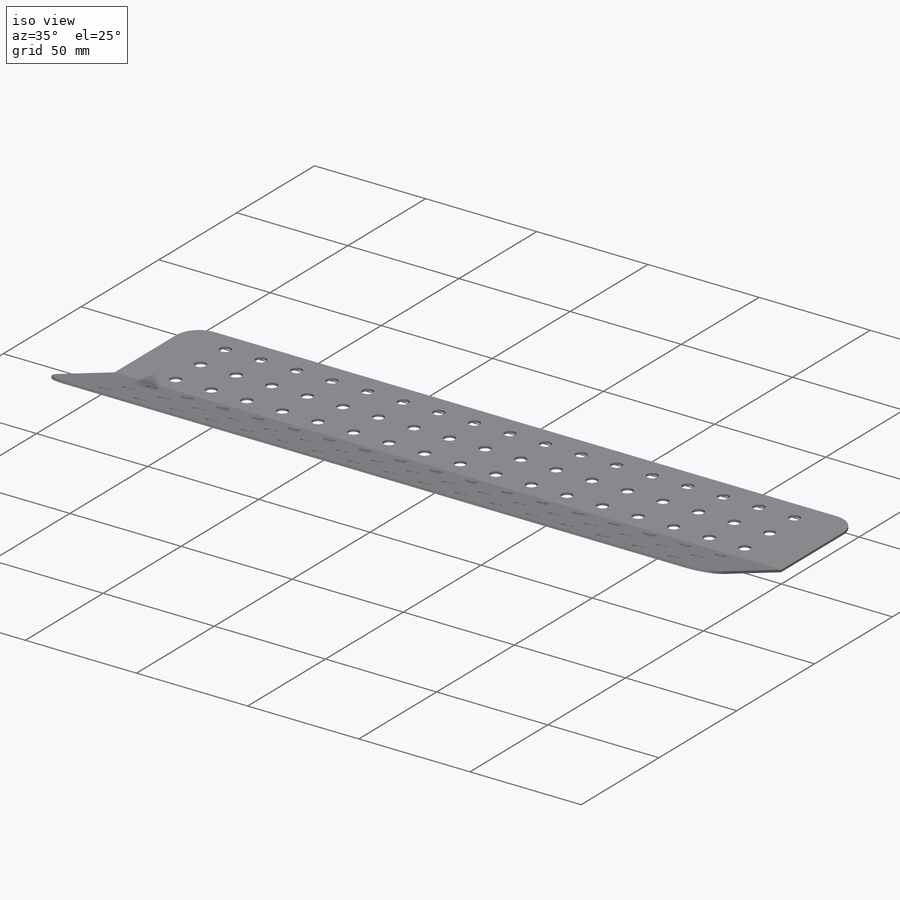
[diagram: iso view]
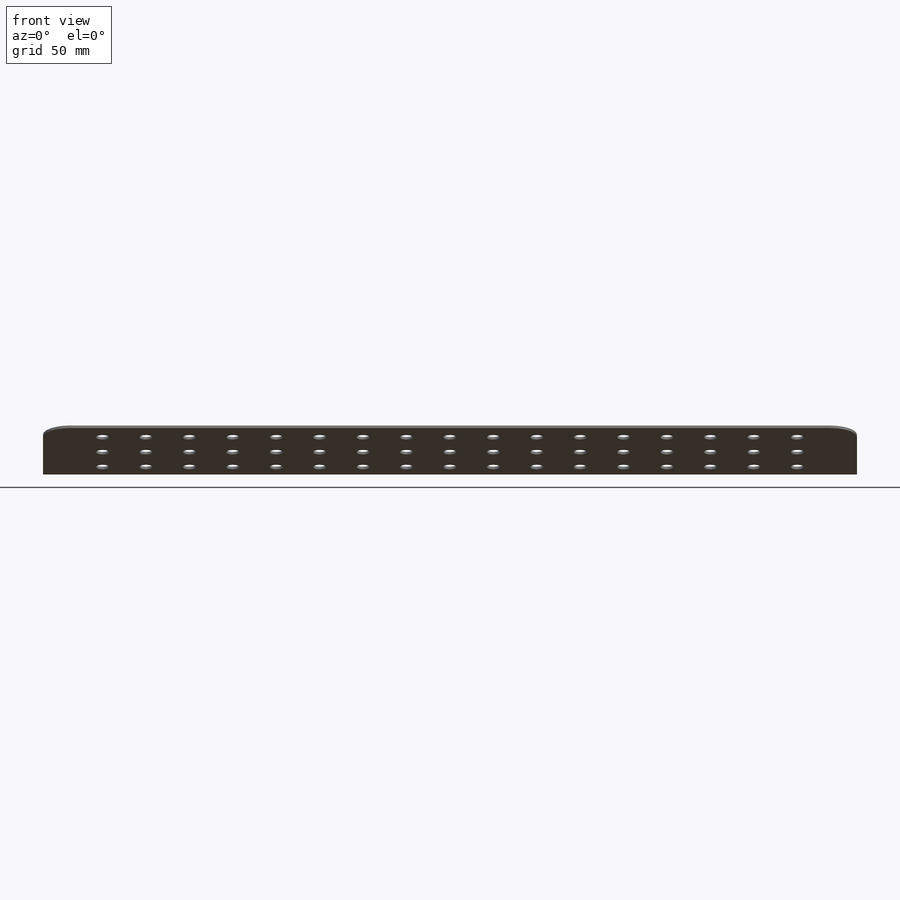
[diagram: front view]
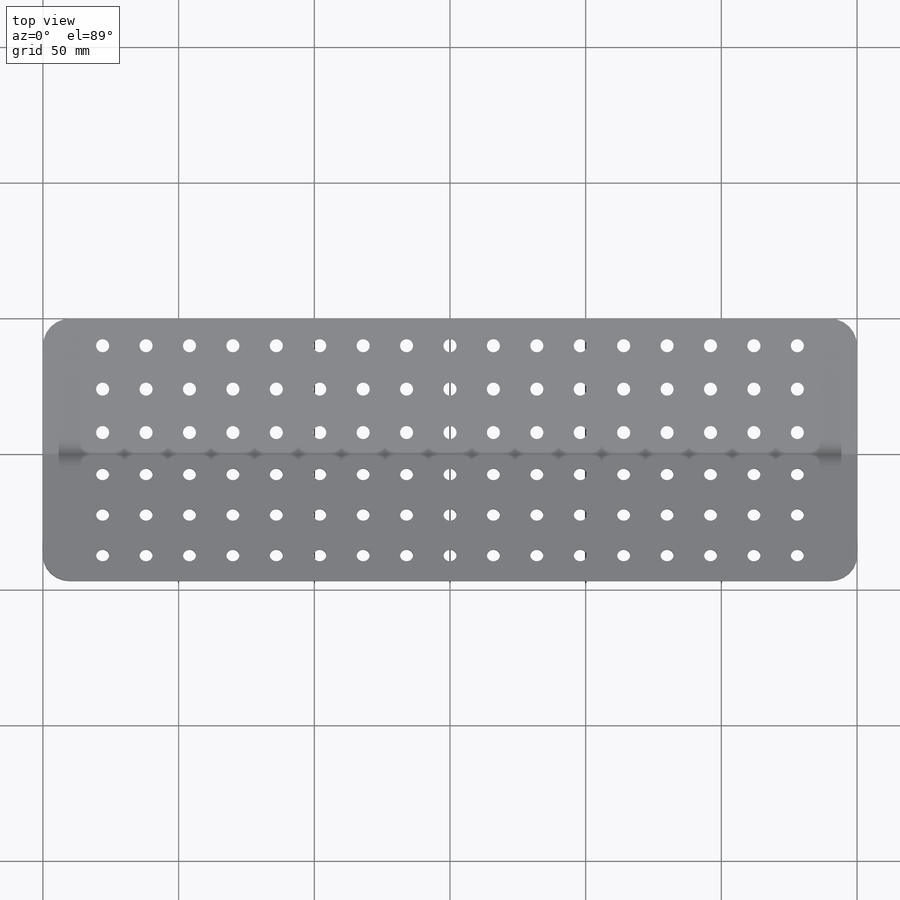
[diagram: top view]
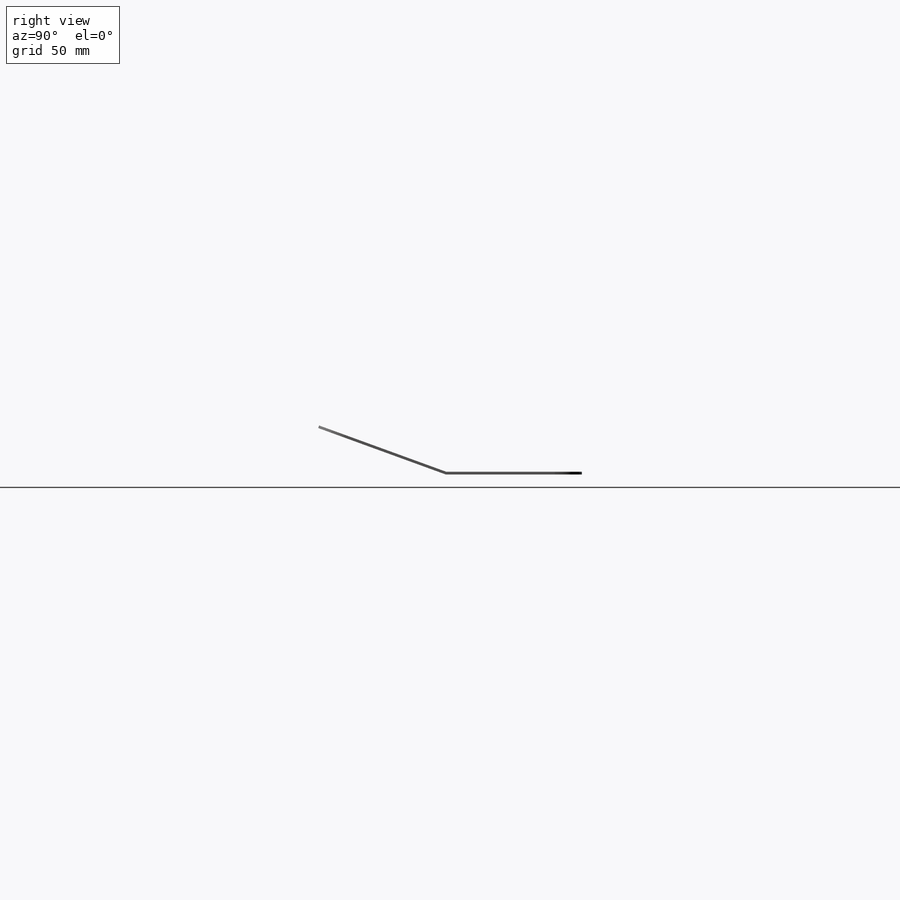
[diagram: right view]
SOLIDWORKS PART (.sldprt)
format: sldprt  version: not decoded by parser v0  size: 743,424 bytes
history: native  units: mm
features: sketch x11, sheet_metal_op x4, material x1, cut_extrude x1, pattern_linear x1 + 3 further entries (+13 scaffold rows collapsed; 1 parser-record rows omitted)
feature tree (35):
  scaffold x13  (default folders/planes/origin — collapsed)
  material  "Material <not specified>"
  sketch  "Sketch1"  dims[c1.D3=10.0mm c1.D1=300.0mm c1.D2=100.0mm c2.D1=0.7366mm c2.D2=0.5 c2.D3=0.0mm c2.D6=500.0mm]
  sheet_metal_op  "Base-Flange1"
  sketch  "Sketch7"  dims[D1=4.8mm D2=128.0mm D3=40.0mm]
  cut_extrude  "Cut-Extrude1"  [1 undecoded]
  pattern_linear  "LPattern1"  Count1=17 Count2=6 Spacing1=16mm Spacing2=16mm
  sketch  "Sketch6"
  parser-record x1  (decoder bookkeeping rows leaked as tree rows — omitted from the tree; the rows remain in map.json)
  sketch  "Bend-Lines1"
  sketch  "Bounding-Box1"
  sheet_metal_op  "Sheet-Metal1"
  "Flat-Pattern1"
  sketch  "Bend-Lines2"
  sketch  "Bounding-Box2"  dims[Sketch Transformation1=0.0deg]
  sheet_metal_op  "Sheet-Metal2"
  "Flat-Pattern1"
  sketch  "Bend-Lines2"
  sketch  "Bounding-Box2"  dims[Sketch Transformation1=0.0deg]
  sheet_metal_op  "Sheet-Metal3"
  "Flat-Pattern1"
  sketch  "Bend-Lines2"
  sketch  "Bounding-Box2"  dims[Sketch Transformation1=0.0deg]
decode coverage: 6 of 17 modeling features carry decoded parameters; 3 rows unclassified (native names shown)
note: 1 parameter value undecoded
note: suppression state not decoded; provenance and decode notes live in map.json
